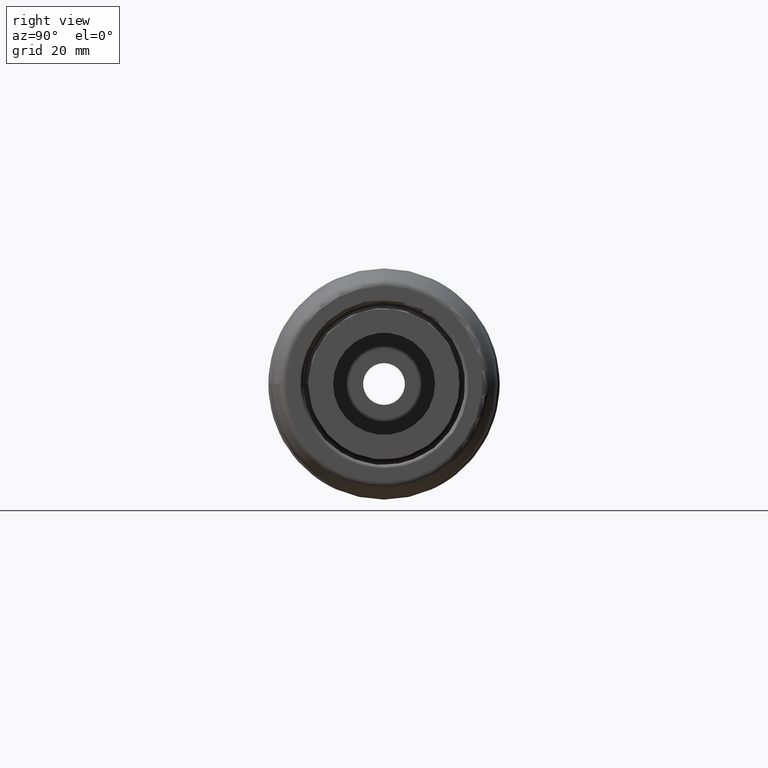
[diagram: clean part render]
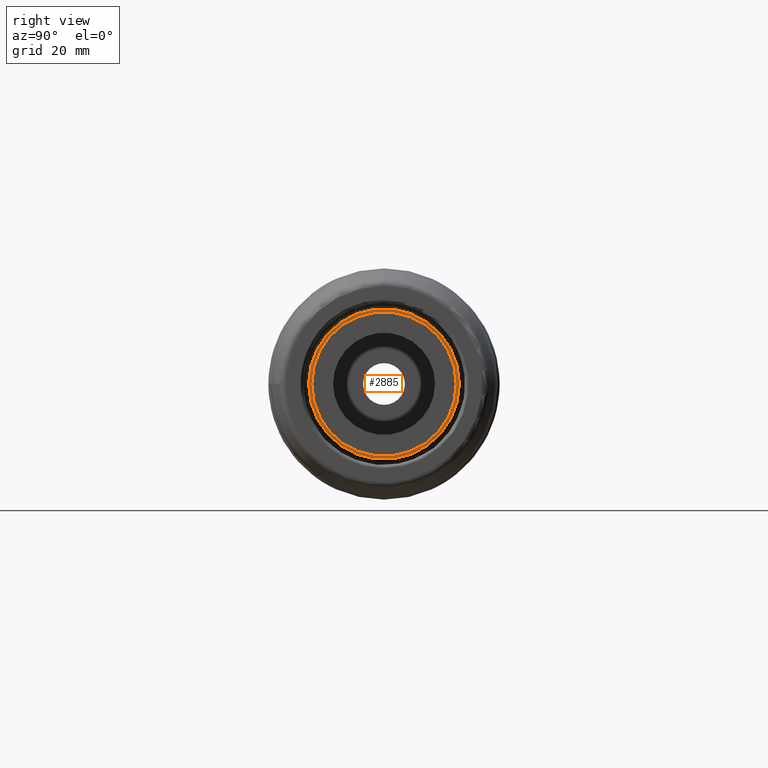
[diagram: same view with one face highlighted and labeled with its STEP entity id]
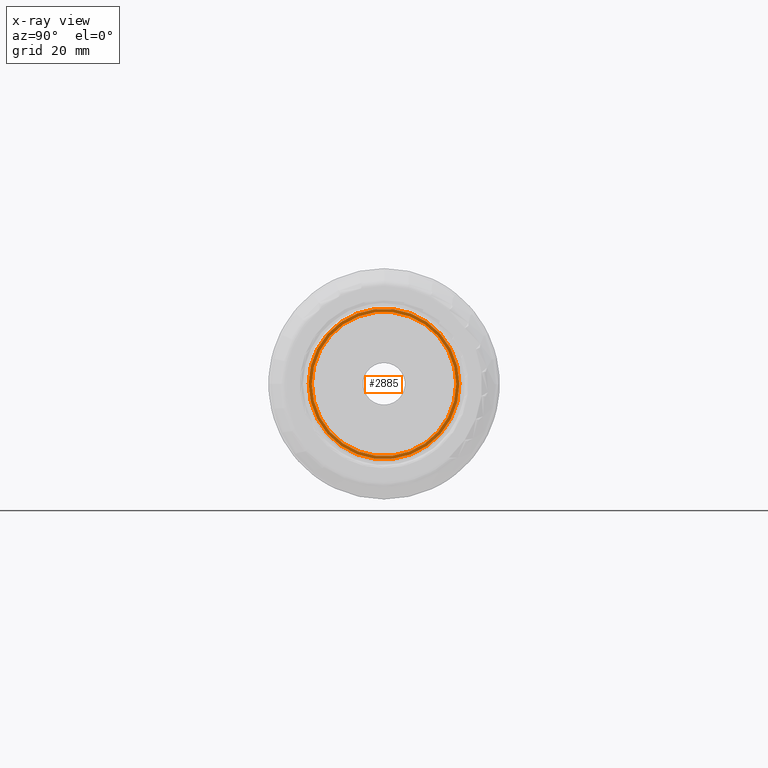
[diagram: x-ray of the same camera — body ghosted, the highlighted face saturated]
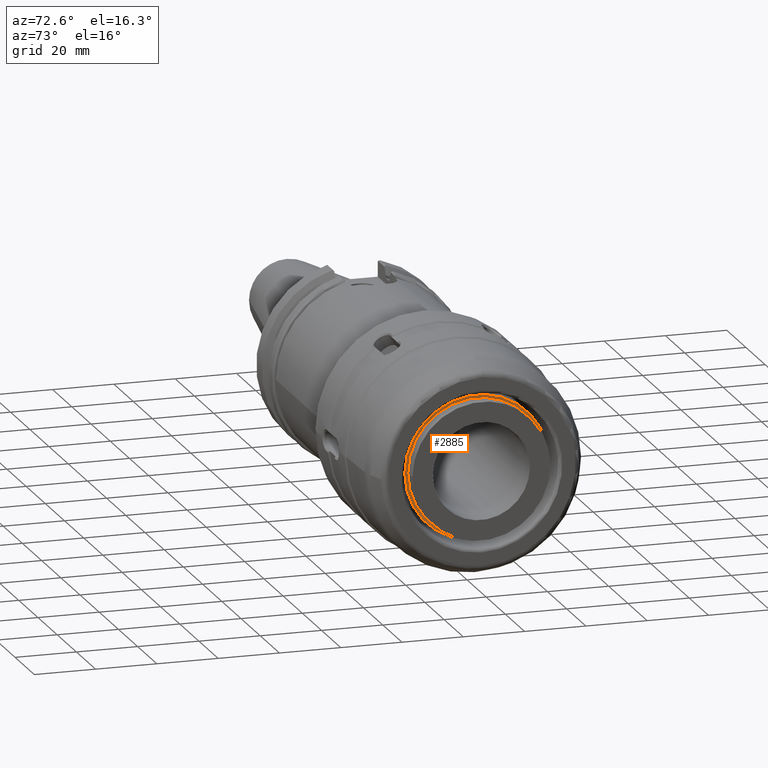
[diagram: same view with one face highlighted and labeled with its STEP entity id]
A machine part, right view. The second image highlights one B-rep face of the part: STEP entity #2885.
The next image is the same camera in x-ray: the body ghosted, the highlighted face saturated — about 0% of this face is hidden behind the body in this view.
A second angle (auxiliary view) of the same face is appended — the face is thin or edge-on in the first view.
In plain terms, the highlighted planar face has unit normal (1, 0, 0).
Its self-contained STEP definition (entity closure, byte-faithful):
#95=FACE_BOUND('',#405,.T.);
#112=PLANE('',#3149);
#227=FACE_OUTER_BOUND('',#404,.T.);
#404=EDGE_LOOP('',(#1983));
#405=EDGE_LOOP('',(#1984));
#600=CIRCLE('',#3148,23.462);
#601=CIRCLE('',#3150,22.5);
#1235=VERTEX_POINT('',#4347);
#1236=VERTEX_POINT('',#4351);
#1526=EDGE_CURVE('',#1235,#1235,#600,.T.);
#1528=EDGE_CURVE('',#1236,#1236,#601,.T.);
#1983=ORIENTED_EDGE('',*,*,#1526,.T.);
#1984=ORIENTED_EDGE('',*,*,#1528,.F.);
#2885=ADVANCED_FACE('',(#227,#95),#112,.T.);
#3148=AXIS2_PLACEMENT_3D('',#4348,#3484,#3485);
#3149=AXIS2_PLACEMENT_3D('',#4350,#3487,#3488);
#3150=AXIS2_PLACEMENT_3D('',#4352,#3489,#3490);
#3484=DIRECTION('center_axis',(1.,0.,0.));
#3485=DIRECTION('ref_axis',(0.,0.,-1.));
#3487=DIRECTION('center_axis',(1.,0.,0.));
#3488=DIRECTION('ref_axis',(0.,0.,-1.));
#3489=DIRECTION('center_axis',(1.,0.,0.));
#3490=DIRECTION('ref_axis',(0.,0.,-1.));
#4347=CARTESIAN_POINT('',(130.2,-23.462,-2.87326632015952E-15));
#4348=CARTESIAN_POINT('Origin',(130.2,0.,0.));
#4350=CARTESIAN_POINT('Origin',(130.2,22.5,0.));
#4351=CARTESIAN_POINT('',(130.2,-22.5,-2.75545529808154E-15));
#4352=CARTESIAN_POINT('Origin',(130.2,0.,0.));